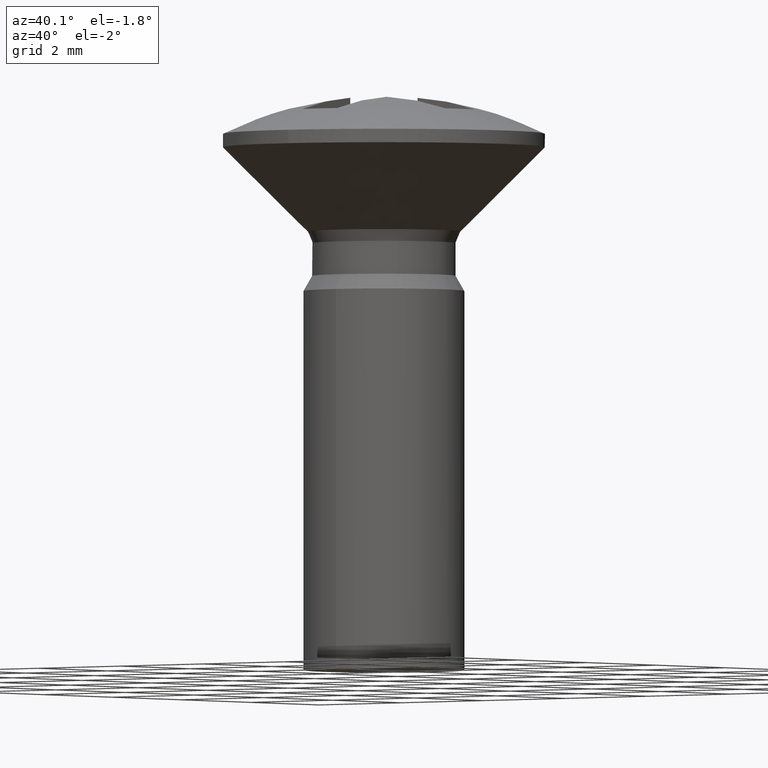
[diagram: clean part render]
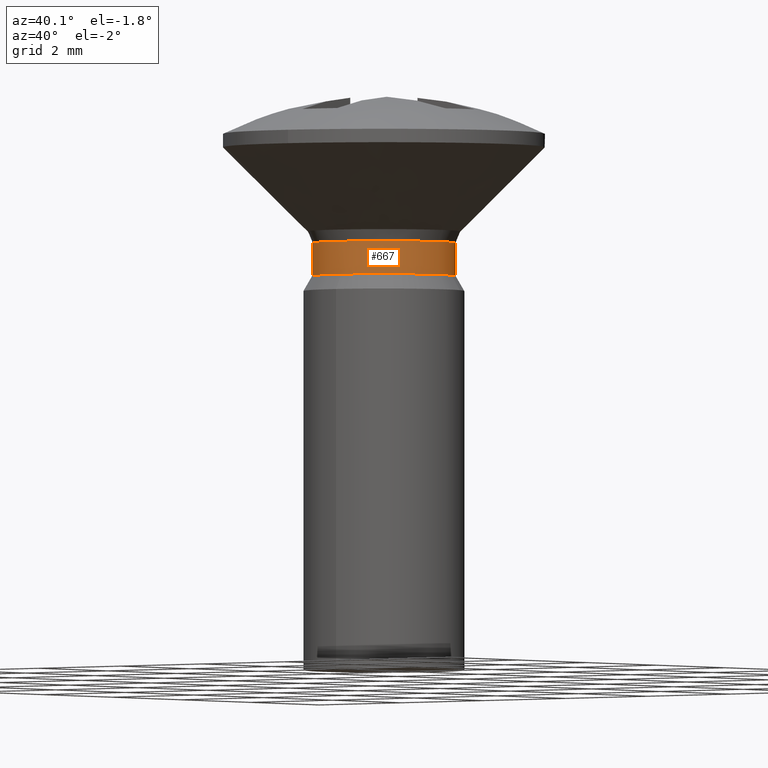
[diagram: same view with one face highlighted and labeled with its STEP entity id]
A machine part, auxiliary view. The second image highlights one B-rep face of the part: STEP entity #667.
In plain terms, the highlighted face is a freeform B-spline surface patch.
Its self-contained STEP definition (entity closure, byte-faithful):
#436=CARTESIAN_POINT('',(-0.619690689823712,1.185280430508259,-2.649300000000000));
#437=VERTEX_POINT('',#436);
#438=CARTESIAN_POINT('',(0.357430093899842,1.288856073412831,-2.649299999999972));
#439=VERTEX_POINT('',#438);
#455=CARTESIAN_POINT('',(-0.619690091660048,1.185280743240995,-2.036799999999764));
#456=VERTEX_POINT('',#455);
#457=CARTESIAN_POINT('',(-0.619690091660048,1.185280743240995,-2.036799999999764));
#458=CARTESIAN_POINT('',(-0.619690689823712,1.185280430508259,-2.649300000000000));
#459=QUASI_UNIFORM_CURVE('',1,(#457,#458),.UNSPECIFIED.,.F.,.U.);
#460=EDGE_CURVE('',#456,#437,#459,.T.);
#462=CARTESIAN_POINT('',(0.357429514282466,1.288856234153480,-2.036800000000000));
#463=VERTEX_POINT('',#462);
#479=CARTESIAN_POINT('',(0.357429514282466,1.288856234153480,-2.036800000000000));
#480=CARTESIAN_POINT('',(0.357430093899842,1.288856073412831,-2.649299999999972));
#481=QUASI_UNIFORM_CURVE('',1,(#479,#480),.UNSPECIFIED.,.F.,.U.);
#482=EDGE_CURVE('',#463,#439,#481,.T.);
#487=CARTESIAN_POINT('',(0.357431328004672,1.288855731166544,-2.021487499999184));
#488=CARTESIAN_POINT('',(1.646287059171216,0.931424403161872,-2.021487499999184));
#489=CARTESIAN_POINT('',(1.288855731166544,-0.357431328004672,-2.021487499999184));
#490=CARTESIAN_POINT('',(0.931424403161872,-1.646287059171216,-2.021487499999184));
#491=CARTESIAN_POINT('',(-0.357431328004672,-1.288855731166544,-2.021487499999184));
#492=CARTESIAN_POINT('',(-1.646287059171216,-0.931424403161872,-2.021487499999184));
#493=CARTESIAN_POINT('',(-1.288855731166544,0.357431328004672,-2.021487499999184));
#494=CARTESIAN_POINT('',(-1.133816691591058,0.916484044024041,-2.021487499999184));
#495=CARTESIAN_POINT('',(-0.619690689823046,1.185280430508607,-2.021487499999184));
#496=CARTESIAN_POINT('',(0.357431328004672,1.288855731166544,-2.664995312500021));
#497=CARTESIAN_POINT('',(1.646287059171216,0.931424403161872,-2.664995312500020));
#498=CARTESIAN_POINT('',(1.288855731166544,-0.357431328004672,-2.664995312500021));
#499=CARTESIAN_POINT('',(0.931424403161872,-1.646287059171216,-2.664995312500020));
#500=CARTESIAN_POINT('',(-0.357431328004672,-1.288855731166544,-2.664995312500021));
#501=CARTESIAN_POINT('',(-1.646287059171216,-0.931424403161872,-2.664995312500020));
#502=CARTESIAN_POINT('',(-1.288855731166544,0.357431328004672,-2.664995312500021));
#503=CARTESIAN_POINT('',(-1.133816691591058,0.916484044024041,-2.664995312500021));
#504=CARTESIAN_POINT('',(-0.619690689823046,1.185280430508607,-2.664995312500020));
#512=(BOUNDED_SURFACE()B_SPLINE_SURFACE(2,1,((#487,#496),(#488,#497),(#489,#498),(#490,#499),(#491,#500),(#492,#501),(#493,#502),(#494,#503),(#495,#504)),.UNSPECIFIED.,.F.,.F.,.U.)B_SPLINE_SURFACE_WITH_KNOTS((3,2,2,2,3),(2,2),(0.0,1.570796326794897,3.141592653589793,4.712388980384690,5.529203070318036),(0.0,1.0),.UNSPECIFIED.)GEOMETRIC_REPRESENTATION_ITEM()RATIONAL_B_SPLINE_SURFACE(((1.0,1.0),(0.707106781186548,0.707106781186548),(1.0,1.0),(0.707106781186548,0.707106781186548),(1.0,1.0),(0.707106781186548,0.707106781186548),(1.0,1.0),(0.847695526217005,0.847695526217005),(0.853787705168324,0.853787705168324)))REPRESENTATION_ITEM('')SURFACE());
#513=CARTESIAN_POINT('',(-1.337500000000012,0.0,-2.649300000000000));
#514=VERTEX_POINT('',#513);
#515=CARTESIAN_POINT('',(-1.337500000000012,0.0,-2.649300000000000));
#516=CARTESIAN_POINT('',(-1.337500000000011,0.809993928566352,-2.649299999999999));
#517=CARTESIAN_POINT('',(-0.619690689823712,1.185280430508259,-2.649300000000000));
#525=(BOUNDED_CURVE()B_SPLINE_CURVE(2,(#515,#516,#517),.UNSPECIFIED.,.F.,.U.)B_SPLINE_CURVE_WITH_KNOTS((3,3),(0.0,0.171174122833185),.UNSPECIFIED.)CURVE()GEOMETRIC_REPRESENTATION_ITEM()RATIONAL_B_SPLINE_CURVE((1.0,0.799457040743277,0.873536202615679))REPRESENTATION_ITEM(''));
#526=EDGE_CURVE('',#514,#437,#525,.T.);
#527=ORIENTED_EDGE('',*,*,#526,.F.);
#528=CARTESIAN_POINT('',(0.081652421628475,-1.335005292889283,-2.649300000000105));
#529=VERTEX_POINT('',#528);
#530=CARTESIAN_POINT('',(0.081652421628475,-1.335005292889282,-2.649300000000105));
#531=CARTESIAN_POINT('',(0.040864320912464,-1.337500000000012,-2.649300000000000));
#532=CARTESIAN_POINT('',(0.0,-1.337500000000012,-2.649300000000000));
#533=CARTESIAN_POINT('',(-1.337500000000012,-1.337500000000012,-2.649299999999999));
#534=CARTESIAN_POINT('',(-1.337500000000012,0.0,-2.649300000000000));
#542=(BOUNDED_CURVE()B_SPLINE_CURVE(2,(#530,#531,#532,#533,#534),.UNSPECIFIED.,.F.,.U.)B_SPLINE_CURVE_WITH_KNOTS((3,2,3),(0.739332962241813,0.750000000000000,1.0),.UNSPECIFIED.)CURVE()GEOMETRIC_REPRESENTATION_ITEM()RATIONAL_B_SPLINE_CURVE((0.976072041672870,0.987502787903200,1.0,0.707106781186548,1.0))REPRESENTATION_ITEM(''));
#543=EDGE_CURVE('',#529,#514,#542,.T.);
#544=ORIENTED_EDGE('',*,*,#543,.F.);
#545=CARTESIAN_POINT('',(1.337500000000012,0.0,-2.649300000000000));
#546=VERTEX_POINT('',#545);
#547=CARTESIAN_POINT('',(1.337500000000012,0.0,-2.649300000000000));
#548=CARTESIAN_POINT('',(1.337500000000012,-1.258194364485250,-2.649299999999999));
#549=CARTESIAN_POINT('',(0.081652421628475,-1.335005292889283,-2.649300000000105));
#557=(BOUNDED_CURVE()B_SPLINE_CURVE(2,(#547,#548,#549),.UNSPECIFIED.,.F.,.U.)B_SPLINE_CURVE_WITH_KNOTS((3,3),(0.500000000000000,0.739332962241814),.UNSPECIFIED.)CURVE()GEOMETRIC_REPRESENTATION_ITEM()RATIONAL_B_SPLINE_CURVE((1.0,0.719603993283347,0.976072041672871))REPRESENTATION_ITEM(''));
#558=EDGE_CURVE('',#546,#529,#557,.T.);
#559=ORIENTED_EDGE('',*,*,#558,.F.);
#560=CARTESIAN_POINT('',(1.252092036613680,0.470289040749123,-2.649300000000060));
#561=VERTEX_POINT('',#560);
#562=CARTESIAN_POINT('',(1.252092036613681,0.470289040749123,-2.649300000000060));
#563=CARTESIAN_POINT('',(1.337500000000012,0.242899878864713,-2.649299999999999));
#564=CARTESIAN_POINT('',(1.337500000000012,0.0,-2.649300000000000));
#572=(BOUNDED_CURVE()B_SPLINE_CURVE(2,(#562,#563,#564),.UNSPECIFIED.,.F.,.U.)B_SPLINE_CURVE_WITH_KNOTS((3,3),(0.440284170898814,0.500000000000000),.UNSPECIFIED.)CURVE()GEOMETRIC_REPRESENTATION_ITEM()RATIONAL_B_SPLINE_CURVE((0.893499554635649,0.930038554401758,1.0))REPRESENTATION_ITEM(''));
#573=EDGE_CURVE('',#561,#546,#572,.T.);
#574=ORIENTED_EDGE('',*,*,#573,.F.);
#575=CARTESIAN_POINT('',(0.357430093899842,1.288856073412831,-2.649299999999972));
#576=CARTESIAN_POINT('',(1.012913526866731,1.107075105136104,-2.649300000000000));
#577=CARTESIAN_POINT('',(1.252092036613681,0.470289040749123,-2.649300000000060));
#585=(BOUNDED_CURVE()B_SPLINE_CURVE(2,(#575,#576,#577),.UNSPECIFIED.,.F.,.U.)B_SPLINE_CURVE_WITH_KNOTS((3,3),(0.295548672140857,0.440284170898814),.UNSPECIFIED.)CURVE()GEOMETRIC_REPRESENTATION_ITEM()RATIONAL_B_SPLINE_CURVE((0.912717947310163,0.804938607984408,0.893499554635649))REPRESENTATION_ITEM(''));
#586=EDGE_CURVE('',#439,#561,#585,.T.);
#587=ORIENTED_EDGE('',*,*,#586,.F.);
#588=ORIENTED_EDGE('',*,*,#482,.F.);
#589=CARTESIAN_POINT('',(1.337500000000012,0.0,-2.036800000000000));
#590=VERTEX_POINT('',#589);
#591=CARTESIAN_POINT('',(0.357429514282466,1.288856234153480,-2.036800000000000));
#592=CARTESIAN_POINT('',(1.337500000000012,1.017060118816448,-2.036800000000000));
#593=CARTESIAN_POINT('',(1.337500000000012,0.0,-2.036800000000000));
#601=(BOUNDED_CURVE()B_SPLINE_CURVE(2,(#591,#592,#593),.UNSPECIFIED.,.F.,.U.)B_SPLINE_CURVE_WITH_KNOTS((3,3),(0.295548599580663,0.500000000000000),.UNSPECIFIED.)CURVE()GEOMETRIC_REPRESENTATION_ITEM()RATIONAL_B_SPLINE_CURVE((0.912718055376164,0.760470284961050,1.0))REPRESENTATION_ITEM(''));
#602=EDGE_CURVE('',#463,#590,#601,.T.);
#603=ORIENTED_EDGE('',*,*,#602,.T.);
#604=CARTESIAN_POINT('',(-0.939794334605965,-0.951678968267423,-2.036799999999406));
#605=VERTEX_POINT('',#604);
#606=CARTESIAN_POINT('',(1.337500000000012,0.0,-2.036800000000000));
#607=CARTESIAN_POINT('',(1.337500000000012,-1.337500000000012,-2.036800000000000));
#608=CARTESIAN_POINT('',(0.0,-1.337500000000012,-2.036800000000000));
#609=CARTESIAN_POINT('',(-0.549094212361581,-1.337500000000011,-2.036800000000000));
#610=CARTESIAN_POINT('',(-0.939794334605965,-0.951678968267423,-2.036799999999406));
#618=(BOUNDED_CURVE()B_SPLINE_CURVE(2,(#606,#607,#608,#609,#610),.UNSPECIFIED.,.F.,.U.)B_SPLINE_CURVE_WITH_KNOTS((3,2,3),(0.500000000000000,0.750000000000000,0.874051937432029),.UNSPECIFIED.)CURVE()GEOMETRIC_REPRESENTATION_ITEM()RATIONAL_B_SPLINE_CURVE((1.0,0.707106781186548,1.0,0.854664114981952,0.853561814883004))REPRESENTATION_ITEM(''));
#619=EDGE_CURVE('',#590,#605,#618,.T.);
#620=ORIENTED_EDGE('',*,*,#619,.T.);
#621=CARTESIAN_POINT('',(-1.337500000000012,0.0,-2.036800000000000));
#622=VERTEX_POINT('',#621);
#623=CARTESIAN_POINT('',(-0.939794334605965,-0.951678968267423,-2.036799999999406));
#624=CARTESIAN_POINT('',(-1.337500000000012,-0.558939879099084,-2.036800000000000));
#625=CARTESIAN_POINT('',(-1.337500000000012,0.0,-2.036800000000000));
#633=(BOUNDED_CURVE()B_SPLINE_CURVE(2,(#623,#624,#625),.UNSPECIFIED.,.F.,.U.)B_SPLINE_CURVE_WITH_KNOTS((3,3),(0.874051937432029,1.0),.UNSPECIFIED.)CURVE()GEOMETRIC_REPRESENTATION_ITEM()RATIONAL_B_SPLINE_CURVE((0.853561814883004,0.852442666204595,1.0))REPRESENTATION_ITEM(''));
#634=EDGE_CURVE('',#605,#622,#633,.T.);
#635=ORIENTED_EDGE('',*,*,#634,.T.);
#636=CARTESIAN_POINT('',(-1.053826424138199,0.823623771990653,-2.036799999999204));
#637=VERTEX_POINT('',#636);
#638=CARTESIAN_POINT('',(-1.337500000000012,0.0,-2.036800000000000));
#639=CARTESIAN_POINT('',(-1.337500000000012,0.460663497847053,-2.036800000000000));
#640=CARTESIAN_POINT('',(-1.053826424138199,0.823623771990653,-2.036799999999205));
#648=(BOUNDED_CURVE()B_SPLINE_CURVE(2,(#638,#639,#640),.UNSPECIFIED.,.F.,.U.)B_SPLINE_CURVE_WITH_KNOTS((3,3),(0.0,0.106567917885042),.UNSPECIFIED.)CURVE()GEOMETRIC_REPRESENTATION_ITEM()RATIONAL_B_SPLINE_CURVE((1.0,0.875147918033610,0.856737647417386))REPRESENTATION_ITEM(''));
#649=EDGE_CURVE('',#622,#637,#648,.T.);
#650=ORIENTED_EDGE('',*,*,#649,.T.);
#651=CARTESIAN_POINT('',(-1.053826424138199,0.823623771990653,-2.036799999999205));
#652=CARTESIAN_POINT('',(-0.875836162281190,1.051362270517512,-2.036799999999557));
#653=CARTESIAN_POINT('',(-0.619690091660048,1.185280743240994,-2.036799999999764));
#661=(BOUNDED_CURVE()B_SPLINE_CURVE(2,(#651,#652,#653),.UNSPECIFIED.,.F.,.U.)B_SPLINE_CURVE_WITH_KNOTS((3,3),(0.106567917885042,0.171174278693213),.UNSPECIFIED.)CURVE()GEOMETRIC_REPRESENTATION_ITEM()RATIONAL_B_SPLINE_CURVE((0.856737647417386,0.845576496767047,0.873536337519245))REPRESENTATION_ITEM(''));
#662=EDGE_CURVE('',#637,#456,#661,.T.);
#663=ORIENTED_EDGE('',*,*,#662,.T.);
#664=ORIENTED_EDGE('',*,*,#460,.T.);
#665=EDGE_LOOP('',(#527,#544,#559,#574,#587,#588,#603,#620,#635,#650,#663,#664));
#666=FACE_OUTER_BOUND('',#665,.T.);
#667=ADVANCED_FACE('',(#666),#512,.T.);